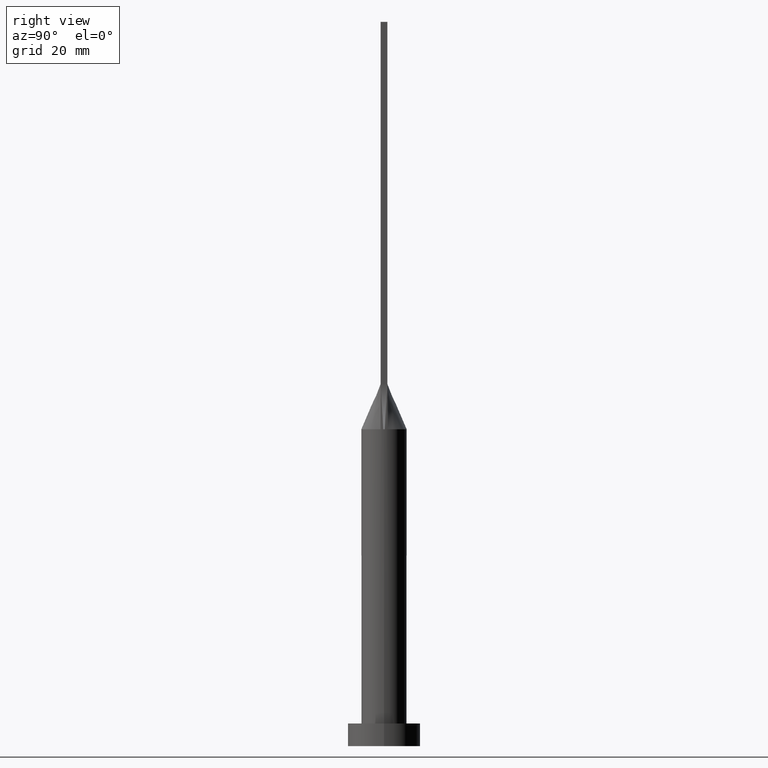
[diagram: clean part render]
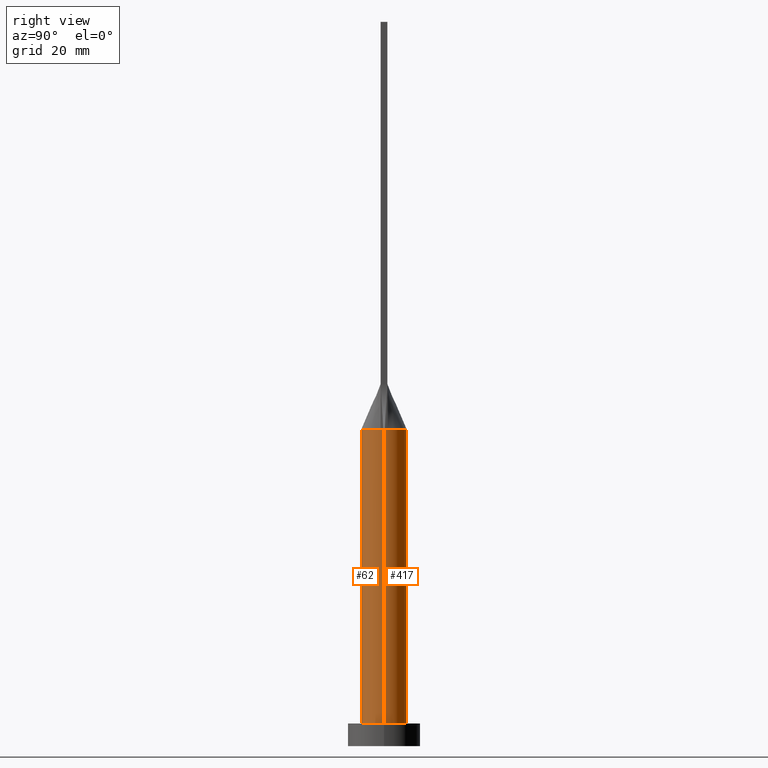
[diagram: same view with one multi-face feature highlighted, each face labeled with its STEP entity id]
A machine part, right view. The highlighted faces form ONE feature: a constant-radius fillet chain: 2 tangent blend faces with common blend radius 5 mm. The faces share edges in the B-rep.
Their STEP definitions:
[1] entity #417 (Cylinder):
#3 = CARTESIAN_POINT ( 'NONE',  ( 4.029217956433126524, 3.021257902548482477, 70.00000000000001421 ) ) ;
#9 = CARTESIAN_POINT ( 'NONE',  ( -4.999812818728077701, -1.193032336741890821E-15, 70.00000000000000000 ) ) ;
#13 = CARTESIAN_POINT ( 'NONE',  ( 0.000000000000000000, 0.000000000000000000, 70.00000000000000000 ) ) ;
#16 = CARTESIAN_POINT ( 'NONE',  ( 0.000000000000000000, 0.000000000000000000, 70.00000000000000000 ) ) ;
#27 = LINE ( 'NONE', #119, #499 ) ;
#35 = CARTESIAN_POINT ( 'NONE',  ( 4.874625637456157179, 1.186344398896585606, 70.00000000000001421 ) ) ;
#44 = EDGE_CURVE ( 'NONE', #179, #84, #256, .T. ) ;
#47 = VERTEX_POINT ( 'NONE', #9 ) ;
#50 = CARTESIAN_POINT ( 'NONE',  ( 2.643217737595826566, 4.256483892511437439, 69.99999999999998579 ) ) ;
#53 = CARTESIAN_POINT ( 'NONE',  ( -3.404830936252120299, 3.673931880027067720, 70.00000000000001421 ) ) ;
#55 = CARTESIAN_POINT ( 'NONE',  ( -3.168723755431092748, 3.881165404529570484, 69.99999999999998579 ) ) ;
#84 = VERTEX_POINT ( 'NONE', #150 ) ;
#92 = VERTEX_POINT ( 'NONE', #350 ) ;
#98 = LINE ( 'NONE', #578, #383 ) ;
#101 = CARTESIAN_POINT ( 'NONE',  ( -0.7119876437238006339, 4.961551549233178982, 70.00000000000000000 ) ) ;
#105 = CARTESIAN_POINT ( 'NONE',  ( 3.404830936252119411, 3.673931880027066388, 70.00000000000000000 ) ) ;
#107 = CARTESIAN_POINT ( 'NONE',  ( -1.732223102076449806, 4.702695359254402518, 69.99999999999998579 ) ) ;
#119 = CARTESIAN_POINT ( 'NONE',  ( -5.000000000000000000, 0.000000000000000000, 70.00000000000000000 ) ) ;
#141 = AXIS2_PLACEMENT_3D ( 'NONE', #576, #298, #438 ) ;
#150 = CARTESIAN_POINT ( 'NONE',  ( -4.938831943662458812, 0.7798155886440081286, 70.00000000000000000 ) ) ;
#155 = CARTESIAN_POINT ( 'NONE',  ( -1.400150253878312823, 4.812847332616943419, 70.00000000000001421 ) ) ;
#171 = DIRECTION ( 'NONE',  ( 1.000000000000000000, 0.000000000000000000, 0.000000000000000000 ) ) ;
#179 = VERTEX_POINT ( 'NONE', #590 ) ;
#197 = CARTESIAN_POINT ( 'NONE',  ( -0.3560391241594593192, 5.000000000000000000, 70.00000000000001421 ) ) ;
#203 = CARTESIAN_POINT ( 'NONE',  ( -4.029217956433124748, 3.021257902548482033, 70.00000000000001421 ) ) ;
#220 = DIRECTION ( 'NONE',  ( 1.000000000000000000, 0.000000000000000000, 0.000000000000000000 ) ) ;
#224 = DIRECTION ( 'NONE',  ( 0.000000000000000000, 0.000000000000000000, 1.000000000000000000 ) ) ;
#232 = AXIS2_PLACEMENT_3D ( 'NONE', #254, #402, #220 ) ;
#246 = CARTESIAN_POINT ( 'NONE',  ( -4.332026455536841070, 2.547220758687717801, 70.00000000000000000 ) ) ;
#248 = CYLINDRICAL_SURFACE ( 'NONE', #141, 5.000000000000000000 ) ;
#250 = CARTESIAN_POINT ( 'NONE',  ( 2.353781608410062454, 4.424438117685770777, 70.00000000000001421 ) ) ;
#251 = CIRCLE ( 'NONE', #232, 5.000000000000000000 ) ;
#253 = CARTESIAN_POINT ( 'NONE',  ( -4.938831943662458812, 0.7798155886440081286, 70.00000000000000000 ) ) ;
#254 = CARTESIAN_POINT ( 'NONE',  ( 0.000000000000000000, 0.000000000000000000, 5.000000000000000000 ) ) ;
#256 = B_SPLINE_CURVE_WITH_KNOTS ( 'NONE', 3,
 ( #323, #35, #421, #610, #3, #105, #440, #50, #250, #621, #492, #390, #434, #197, #101, #155, #107, #443, #346, #55, #53, #203, #246, #290, #304, #253 ),
 .UNSPECIFIED., .F., .F.,
 ( 4, 2, 2, 2, 2, 2, 2, 2, 2, 2, 2, 2, 4 ),
 ( 0.000000000000000000, 0.1250000000000001388, 0.2500000000000002220, 0.3125000000000002776, 0.3750000000000002776, 0.4375000000000002776, 0.5000000000000002220, 0.5625000000000002220, 0.6250000000000001110, 0.6875000000000001110, 0.7500000000000001110, 0.8750000000000001110, 1.000000000000000000 ),
 .UNSPECIFIED. ) ;
#259 = ORIENTED_EDGE ( 'NONE', *, *, #44, .F. ) ;
#290 = CARTESIAN_POINT ( 'NONE',  ( -4.753727492665067444, 1.629988260829202007, 70.00000000000001421 ) ) ;
#297 = CIRCLE ( 'NONE', #481, 5.000000000000000000 ) ;
#298 = DIRECTION ( 'NONE',  ( -0.000000000000000000, -0.000000000000000000, -1.000000000000000000 ) ) ;
#304 = CARTESIAN_POINT ( 'NONE',  ( -4.874625637456156291, 1.186344398896586716, 70.00000000000000000 ) ) ;
#323 = CARTESIAN_POINT ( 'NONE',  ( 4.938814826645345768, 0.7798128673650538412, 70.00000000000000000 ) ) ;
#327 = ORIENTED_EDGE ( 'NONE', *, *, #441, .F. ) ;
#335 = EDGE_CURVE ( 'NONE', #369, #92, #98, .T. ) ;
#346 = CARTESIAN_POINT ( 'NONE',  ( -2.643217737595827455, 4.256483892511438327, 70.00000000000000000 ) ) ;
#350 = CARTESIAN_POINT ( 'NONE',  ( 5.000000000000000000, 6.123233995736766282E-16, 5.000000000000000000 ) ) ;
#369 = VERTEX_POINT ( 'NONE', #526 ) ;
#383 = VECTOR ( 'NONE', #397, 1000.000000000000000 ) ;
#390 = CARTESIAN_POINT ( 'NONE',  ( 0.7119876437238013001, 4.961551549233180758, 70.00000000000001421 ) ) ;
#394 = CARTESIAN_POINT ( 'NONE',  ( -5.000000000000000000, 0.000000000000000000, 5.000000000000000000 ) ) ;
#397 = DIRECTION ( 'NONE',  ( -0.000000000000000000, -0.000000000000000000, -1.000000000000000000 ) ) ;
#402 = DIRECTION ( 'NONE',  ( 0.000000000000000000, 0.000000000000000000, 1.000000000000000000 ) ) ;
#417 = ADVANCED_FACE ( 'NONE', ( #529 ), #248, .T. ) ;
#420 = CIRCLE ( 'NONE', #459, 5.000000000000000000 ) ;
#421 = CARTESIAN_POINT ( 'NONE',  ( 4.753727492665065668, 1.629988260829201563, 70.00000000000000000 ) ) ;
#428 = VERTEX_POINT ( 'NONE', #394 ) ;
#434 = CARTESIAN_POINT ( 'NONE',  ( 0.3560391241594590972, 5.000000000000001776, 70.00000000000001421 ) ) ;
#438 = DIRECTION ( 'NONE',  ( -1.000000000000000000, 0.000000000000000000, 0.000000000000000000 ) ) ;
#440 = CARTESIAN_POINT ( 'NONE',  ( 3.168723755431093192, 3.881165404529570040, 69.99999999999998579 ) ) ;
#441 = EDGE_CURVE ( 'NONE', #84, #47, #297, .T. ) ;
#443 = CARTESIAN_POINT ( 'NONE',  ( -2.353781608410062010, 4.424438117685770777, 69.99999999999998579 ) ) ;
#449 = DIRECTION ( 'NONE',  ( -0.000000000000000000, -0.000000000000000000, -1.000000000000000000 ) ) ;
#451 = ORIENTED_EDGE ( 'NONE', *, *, #489, .F. ) ;
#457 = DIRECTION ( 'NONE',  ( 0.000000000000000000, 0.000000000000000000, 1.000000000000000000 ) ) ;
#459 = AXIS2_PLACEMENT_3D ( 'NONE', #16, #457, #548 ) ;
#473 = ORIENTED_EDGE ( 'NONE', *, *, #335, .T. ) ;
#481 = AXIS2_PLACEMENT_3D ( 'NONE', #13, #224, #171 ) ;
#489 = EDGE_CURVE ( 'NONE', #47, #428, #27, .T. ) ;
#492 = CARTESIAN_POINT ( 'NONE',  ( 1.400150253878312823, 4.812847332616943419, 70.00000000000000000 ) ) ;
#499 = VECTOR ( 'NONE', #449, 1000.000000000000000 ) ;
#507 = EDGE_CURVE ( 'NONE', #369, #179, #420, .T. ) ;
#526 = CARTESIAN_POINT ( 'NONE',  ( 4.999812818728077701, 1.241126956226958231E-15, 70.00000000000000000 ) ) ;
#529 = FACE_OUTER_BOUND ( 'NONE', #595, .T. ) ;
#548 = DIRECTION ( 'NONE',  ( 1.000000000000000000, 0.000000000000000000, 0.000000000000000000 ) ) ;
#552 = ORIENTED_EDGE ( 'NONE', *, *, #571, .T. ) ;
#562 = ORIENTED_EDGE ( 'NONE', *, *, #507, .F. ) ;
#571 = EDGE_CURVE ( 'NONE', #92, #428, #251, .T. ) ;
#576 = CARTESIAN_POINT ( 'NONE',  ( 0.000000000000000000, 0.000000000000000000, 70.00000000000000000 ) ) ;
#578 = CARTESIAN_POINT ( 'NONE',  ( 5.000000000000000000, 6.123233995736766282E-16, 70.00000000000000000 ) ) ;
#590 = CARTESIAN_POINT ( 'NONE',  ( 4.938814826645345768, 0.7798128673650538412, 70.00000000000000000 ) ) ;
#595 = EDGE_LOOP ( 'NONE', ( #562, #473, #552, #451, #327, #259 ) ) ;
#610 = CARTESIAN_POINT ( 'NONE',  ( 4.332026455536839293, 2.547220758687718689, 69.99999999999998579 ) ) ;
#621 = CARTESIAN_POINT ( 'NONE',  ( 1.732223102076450250, 4.702695359254404295, 69.99999999999998579 ) ) ;
[2] entity #62 (Cylinder):
#2 = CARTESIAN_POINT ( 'NONE',  ( 4.938833698301754893, -0.7798158709413661738, 70.00000000000000000 ) ) ;
#5 = CARTESIAN_POINT ( 'NONE',  ( 0.000000000000000000, 0.000000000000000000, 70.00000000000000000 ) ) ;
#9 = CARTESIAN_POINT ( 'NONE',  ( -4.999812818728077701, -1.193032336741890821E-15, 70.00000000000000000 ) ) ;
#27 = LINE ( 'NONE', #119, #499 ) ;
#38 = EDGE_LOOP ( 'NONE', ( #265, #189, #503, #234, #546, #69 ) ) ;
#47 = VERTEX_POINT ( 'NONE', #9 ) ;
#54 = DIRECTION ( 'NONE',  ( 0.000000000000000000, 0.000000000000000000, 1.000000000000000000 ) ) ;
#62 = ADVANCED_FACE ( 'NONE', ( #483 ), #295, .T. ) ;
#69 = ORIENTED_EDGE ( 'NONE', *, *, #221, .T. ) ;
#92 = VERTEX_POINT ( 'NONE', #350 ) ;
#98 = LINE ( 'NONE', #578, #383 ) ;
#102 = CARTESIAN_POINT ( 'NONE',  ( 0.000000000000000000, 0.000000000000000000, 70.00000000000000000 ) ) ;
#119 = CARTESIAN_POINT ( 'NONE',  ( -5.000000000000000000, 0.000000000000000000, 70.00000000000000000 ) ) ;
#129 = AXIS2_PLACEMENT_3D ( 'NONE', #102, #54, #249 ) ;
#189 = ORIENTED_EDGE ( 'NONE', *, *, #351, .F. ) ;
#193 = VERTEX_POINT ( 'NONE', #258 ) ;
#221 = EDGE_CURVE ( 'NONE', #428, #92, #568, .T. ) ;
#234 = ORIENTED_EDGE ( 'NONE', *, *, #585, .F. ) ;
#238 = AXIS2_PLACEMENT_3D ( 'NONE', #589, #447, #399 ) ;
#249 = DIRECTION ( 'NONE',  ( 1.000000000000000000, 2.664535259100375697E-15, 0.000000000000000000 ) ) ;
#258 = CARTESIAN_POINT ( 'NONE',  ( -4.938821632323166178, -0.7798139456827060112, 70.00000000000000000 ) ) ;
#265 = ORIENTED_EDGE ( 'NONE', *, *, #335, .F. ) ;
#294 = DIRECTION ( 'NONE',  ( 0.000000000000000000, 0.000000000000000000, 1.000000000000000000 ) ) ;
#295 = CYLINDRICAL_SURFACE ( 'NONE', #439, 5.000000000000000000 ) ;
#296 = AXIS2_PLACEMENT_3D ( 'NONE', #400, #500, #587 ) ;
#332 = CIRCLE ( 'NONE', #238, 5.000000000000000000 ) ;
#335 = EDGE_CURVE ( 'NONE', #369, #92, #98, .T. ) ;
#350 = CARTESIAN_POINT ( 'NONE',  ( 5.000000000000000000, 6.123233995736766282E-16, 5.000000000000000000 ) ) ;
#351 = EDGE_CURVE ( 'NONE', #411, #369, #528, .T. ) ;
#369 = VERTEX_POINT ( 'NONE', #526 ) ;
#383 = VECTOR ( 'NONE', #397, 1000.000000000000000 ) ;
#394 = CARTESIAN_POINT ( 'NONE',  ( -5.000000000000000000, 0.000000000000000000, 5.000000000000000000 ) ) ;
#395 = DIRECTION ( 'NONE',  ( -0.000000000000000000, -0.000000000000000000, -1.000000000000000000 ) ) ;
#397 = DIRECTION ( 'NONE',  ( -0.000000000000000000, -0.000000000000000000, -1.000000000000000000 ) ) ;
#399 = DIRECTION ( 'NONE',  ( 1.000000000000000000, 0.000000000000000000, 0.000000000000000000 ) ) ;
#400 = CARTESIAN_POINT ( 'NONE',  ( 0.000000000000000000, 0.000000000000000000, 5.000000000000000000 ) ) ;
#411 = VERTEX_POINT ( 'NONE', #2 ) ;
#418 = EDGE_CURVE ( 'NONE', #193, #411, #608, .T. ) ;
#428 = VERTEX_POINT ( 'NONE', #394 ) ;
#439 = AXIS2_PLACEMENT_3D ( 'NONE', #532, #395, #487 ) ;
#447 = DIRECTION ( 'NONE',  ( 0.000000000000000000, 0.000000000000000000, 1.000000000000000000 ) ) ;
#449 = DIRECTION ( 'NONE',  ( -0.000000000000000000, -0.000000000000000000, -1.000000000000000000 ) ) ;
#483 = FACE_OUTER_BOUND ( 'NONE', #38, .T. ) ;
#486 = DIRECTION ( 'NONE',  ( 1.000000000000000000, 0.000000000000000000, 0.000000000000000000 ) ) ;
#487 = DIRECTION ( 'NONE',  ( -1.000000000000000000, 0.000000000000000000, 0.000000000000000000 ) ) ;
#489 = EDGE_CURVE ( 'NONE', #47, #428, #27, .T. ) ;
#499 = VECTOR ( 'NONE', #449, 1000.000000000000000 ) ;
#500 = DIRECTION ( 'NONE',  ( 0.000000000000000000, 0.000000000000000000, 1.000000000000000000 ) ) ;
#503 = ORIENTED_EDGE ( 'NONE', *, *, #418, .F. ) ;
#526 = CARTESIAN_POINT ( 'NONE',  ( 4.999812818728077701, 1.241126956226958231E-15, 70.00000000000000000 ) ) ;
#528 = CIRCLE ( 'NONE', #129, 5.000000000000000000 ) ;
#532 = CARTESIAN_POINT ( 'NONE',  ( 0.000000000000000000, 0.000000000000000000, 70.00000000000000000 ) ) ;
#546 = ORIENTED_EDGE ( 'NONE', *, *, #489, .T. ) ;
#568 = CIRCLE ( 'NONE', #296, 5.000000000000000000 ) ;
#578 = CARTESIAN_POINT ( 'NONE',  ( 5.000000000000000000, 6.123233995736766282E-16, 70.00000000000000000 ) ) ;
#585 = EDGE_CURVE ( 'NONE', #47, #193, #332, .T. ) ;
#587 = DIRECTION ( 'NONE',  ( 1.000000000000000000, 0.000000000000000000, 0.000000000000000000 ) ) ;
#589 = CARTESIAN_POINT ( 'NONE',  ( 0.000000000000000000, 0.000000000000000000, 70.00000000000000000 ) ) ;
#605 = AXIS2_PLACEMENT_3D ( 'NONE', #5, #294, #486 ) ;
#608 = CIRCLE ( 'NONE', #605, 5.000000000000000000 ) ;